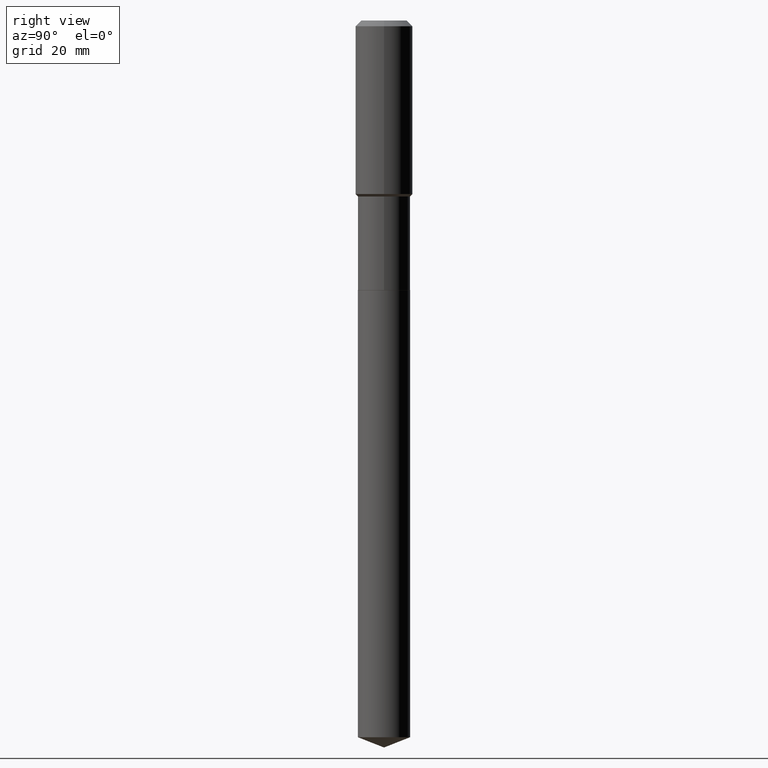
[diagram: clean part render]
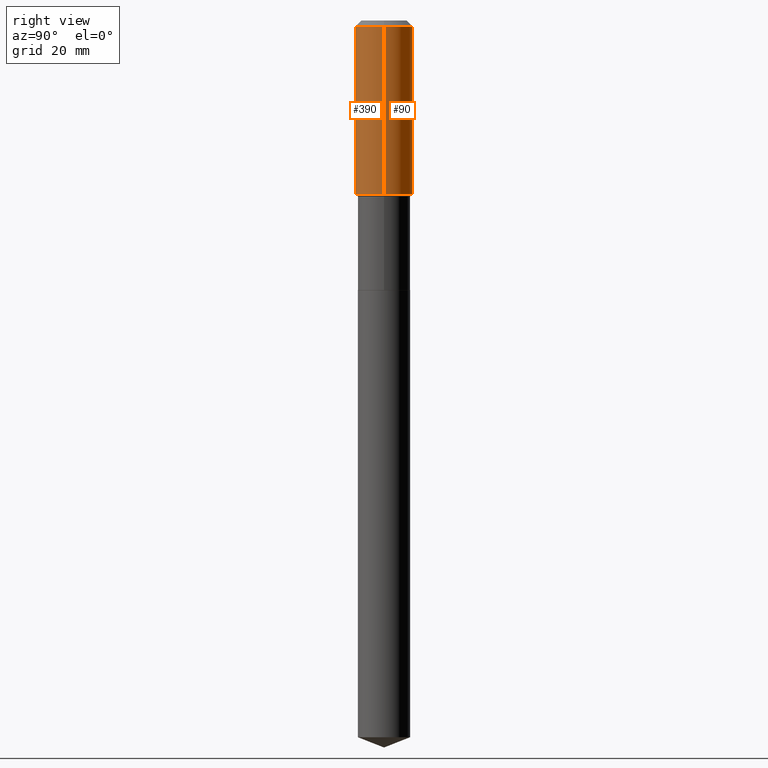
[diagram: same view with one multi-face feature highlighted, each face labeled with its STEP entity id]
A machine part, right view. The highlighted faces form ONE feature: a constant-radius fillet chain: 2 tangent blend faces with common blend radius 7.0002 mm. The faces share edges in the B-rep.
Their STEP definitions:
[1] entity #390 (Cylinder):
#4 = CIRCLE ( 'NONE', #245, 0.2756000000000000116 ) ;
#24 = DIRECTION ( 'NONE',  ( -2.445468806185136597E-29, 3.491481338843145583E-15, 1.000000000000000000 ) ) ;
#27 = ORIENTED_EDGE ( 'NONE', *, *, #67, .T. ) ;
#37 = ORIENTED_EDGE ( 'NONE', *, *, #171, .F. ) ;
#67 = EDGE_CURVE ( 'NONE', #465, #332, #104, .T. ) ;
#70 = DIRECTION ( 'NONE',  ( -2.445468806185136877E-29, 3.491481338843145188E-15, 1.000000000000000000 ) ) ;
#75 = CARTESIAN_POINT ( 'NONE',  ( -0.2756000000000001227, 1.958255779754836984E-15, -1.355658510874252567E-29 ) ) ;
#82 = VERTEX_POINT ( 'NONE', #450 ) ;
#93 = DIRECTION ( 'NONE',  ( -2.445468806185136597E-29, 3.491481338843145583E-15, 1.000000000000000000 ) ) ;
#104 = LINE ( 'NONE', #331, #358 ) ;
#138 = CARTESIAN_POINT ( 'NONE',  ( 0.2756000000000000116, -2.116954965367371053E-15, -0.05512000000000037009 ) ) ;
#147 = AXIS2_PLACEMENT_3D ( 'NONE', #366, #24, #170 ) ;
#167 = DIRECTION ( 'NONE',  ( 1.000000000000000000, -6.982962677686267499E-15, 4.876176775795935793E-29 ) ) ;
#170 = DIRECTION ( 'NONE',  ( 1.000000000000000000, -6.982962677686267499E-15, 0.000000000000000000 ) ) ;
#171 = EDGE_CURVE ( 'NONE', #250, #332, #4, .T. ) ;
#186 = CARTESIAN_POINT ( 'NONE',  ( -0.2756000000000000116, -1.057633428517790474E-15, -0.05512000000000037009 ) ) ;
#215 = CARTESIAN_POINT ( 'NONE',  ( 0.000000000000000000, 0.000000000000000000, 0.000000000000000000 ) ) ;
#245 = AXIS2_PLACEMENT_3D ( 'NONE', #263, #387, #261 ) ;
#250 = VERTEX_POINT ( 'NONE', #186 ) ;
#255 = AXIS2_PLACEMENT_3D ( 'NONE', #215, #93, #167 ) ;
#261 = DIRECTION ( 'NONE',  ( 1.000000000000000000, -6.982962677686267499E-15, 0.000000000000000000 ) ) ;
#263 = CARTESIAN_POINT ( 'NONE',  ( 1.347942405969256414E-30, -1.924504513970354823E-16, -0.05512000000000037009 ) ) ;
#265 = CARTESIAN_POINT ( 'NONE',  ( 0.2756000000000002337, -7.763832479118556138E-15, -1.672450000000000436 ) ) ;
#289 = DIRECTION ( 'NONE',  ( -2.445468806185136877E-29, 3.491481338843145188E-15, 1.000000000000000000 ) ) ;
#298 = CIRCLE ( 'NONE', #147, 0.2756000000000002337 ) ;
#313 = EDGE_CURVE ( 'NONE', #82, #250, #335, .T. ) ;
#326 = ORIENTED_EDGE ( 'NONE', *, *, #313, .F. ) ;
#331 = CARTESIAN_POINT ( 'NONE',  ( 0.2756000000000001227, -1.924504513970336137E-15, 1.343874319409360548E-29 ) ) ;
#332 = VERTEX_POINT ( 'NONE', #138 ) ;
#334 = EDGE_LOOP ( 'NONE', ( #326, #451, #27, #37 ) ) ;
#335 = LINE ( 'NONE', #75, #434 ) ;
#358 = VECTOR ( 'NONE', #289, 39.37007874015748143 ) ;
#366 = CARTESIAN_POINT ( 'NONE',  ( 4.089924304904332418E-29, -5.839327965148219607E-15, -1.672450000000000436 ) ) ;
#387 = DIRECTION ( 'NONE',  ( -2.445468806185136597E-29, 3.491481338843145583E-15, 1.000000000000000000 ) ) ;
#390 = ADVANCED_FACE ( 'NONE', ( #452 ), #412, .T. ) ;
#411 = EDGE_CURVE ( 'NONE', #82, #465, #298, .T. ) ;
#412 = CYLINDRICAL_SURFACE ( 'NONE', #255, 0.2756000000000001227 ) ;
#434 = VECTOR ( 'NONE', #70, 39.37007874015748143 ) ;
#450 = CARTESIAN_POINT ( 'NONE',  ( -0.2756000000000002337, -3.881072185393382228E-15, -1.672450000000000436 ) ) ;
#451 = ORIENTED_EDGE ( 'NONE', *, *, #411, .T. ) ;
#452 = FACE_OUTER_BOUND ( 'NONE', #334, .T. ) ;
#465 = VERTEX_POINT ( 'NONE', #265 ) ;
[2] entity #90 (Cylinder):
#19 = CIRCLE ( 'NONE', #246, 0.2756000000000000116 ) ;
#60 = DIRECTION ( 'NONE',  ( 1.000000000000000000, -6.982962677686267499E-15, 4.876176775795935793E-29 ) ) ;
#63 = DIRECTION ( 'NONE',  ( -2.445468806185136597E-29, 3.491481338843145583E-15, 1.000000000000000000 ) ) ;
#67 = EDGE_CURVE ( 'NONE', #465, #332, #104, .T. ) ;
#70 = DIRECTION ( 'NONE',  ( -2.445468806185136877E-29, 3.491481338843145188E-15, 1.000000000000000000 ) ) ;
#75 = CARTESIAN_POINT ( 'NONE',  ( -0.2756000000000001227, 1.958255779754836984E-15, -1.355658510874252567E-29 ) ) ;
#82 = VERTEX_POINT ( 'NONE', #450 ) ;
#90 = ADVANCED_FACE ( 'NONE', ( #442 ), #406, .T. ) ;
#104 = LINE ( 'NONE', #331, #358 ) ;
#138 = CARTESIAN_POINT ( 'NONE',  ( 0.2756000000000000116, -2.116954965367371053E-15, -0.05512000000000037009 ) ) ;
#148 = CARTESIAN_POINT ( 'NONE',  ( 1.347942405969256414E-30, -1.924504513970354823E-16, -0.05512000000000037009 ) ) ;
#166 = CIRCLE ( 'NONE', #373, 0.2756000000000002337 ) ;
#186 = CARTESIAN_POINT ( 'NONE',  ( -0.2756000000000000116, -1.057633428517790474E-15, -0.05512000000000037009 ) ) ;
#187 = DIRECTION ( 'NONE',  ( -2.445468806185136597E-29, 3.491481338843145583E-15, 1.000000000000000000 ) ) ;
#188 = EDGE_LOOP ( 'NONE', ( #365, #282, #478, #280 ) ) ;
#217 = EDGE_CURVE ( 'NONE', #465, #82, #166, .T. ) ;
#222 = AXIS2_PLACEMENT_3D ( 'NONE', #447, #63, #60 ) ;
#224 = CARTESIAN_POINT ( 'NONE',  ( 4.089924304904332418E-29, -5.839327965148219607E-15, -1.672450000000000436 ) ) ;
#230 = EDGE_CURVE ( 'NONE', #332, #250, #19, .T. ) ;
#246 = AXIS2_PLACEMENT_3D ( 'NONE', #148, #384, #310 ) ;
#250 = VERTEX_POINT ( 'NONE', #186 ) ;
#265 = CARTESIAN_POINT ( 'NONE',  ( 0.2756000000000002337, -7.763832479118556138E-15, -1.672450000000000436 ) ) ;
#280 = ORIENTED_EDGE ( 'NONE', *, *, #67, .F. ) ;
#282 = ORIENTED_EDGE ( 'NONE', *, *, #313, .T. ) ;
#289 = DIRECTION ( 'NONE',  ( -2.445468806185136877E-29, 3.491481338843145188E-15, 1.000000000000000000 ) ) ;
#310 = DIRECTION ( 'NONE',  ( 1.000000000000000000, -6.982962677686267499E-15, 0.000000000000000000 ) ) ;
#313 = EDGE_CURVE ( 'NONE', #82, #250, #335, .T. ) ;
#331 = CARTESIAN_POINT ( 'NONE',  ( 0.2756000000000001227, -1.924504513970336137E-15, 1.343874319409360548E-29 ) ) ;
#332 = VERTEX_POINT ( 'NONE', #138 ) ;
#335 = LINE ( 'NONE', #75, #434 ) ;
#358 = VECTOR ( 'NONE', #289, 39.37007874015748143 ) ;
#365 = ORIENTED_EDGE ( 'NONE', *, *, #217, .T. ) ;
#373 = AXIS2_PLACEMENT_3D ( 'NONE', #224, #187, #462 ) ;
#384 = DIRECTION ( 'NONE',  ( -2.445468806185136597E-29, 3.491481338843145583E-15, 1.000000000000000000 ) ) ;
#406 = CYLINDRICAL_SURFACE ( 'NONE', #222, 0.2756000000000001227 ) ;
#434 = VECTOR ( 'NONE', #70, 39.37007874015748143 ) ;
#442 = FACE_OUTER_BOUND ( 'NONE', #188, .T. ) ;
#447 = CARTESIAN_POINT ( 'NONE',  ( 0.000000000000000000, 0.000000000000000000, 0.000000000000000000 ) ) ;
#450 = CARTESIAN_POINT ( 'NONE',  ( -0.2756000000000002337, -3.881072185393382228E-15, -1.672450000000000436 ) ) ;
#462 = DIRECTION ( 'NONE',  ( 1.000000000000000000, -6.982962677686267499E-15, 0.000000000000000000 ) ) ;
#465 = VERTEX_POINT ( 'NONE', #265 ) ;
#478 = ORIENTED_EDGE ( 'NONE', *, *, #230, .F. ) ;